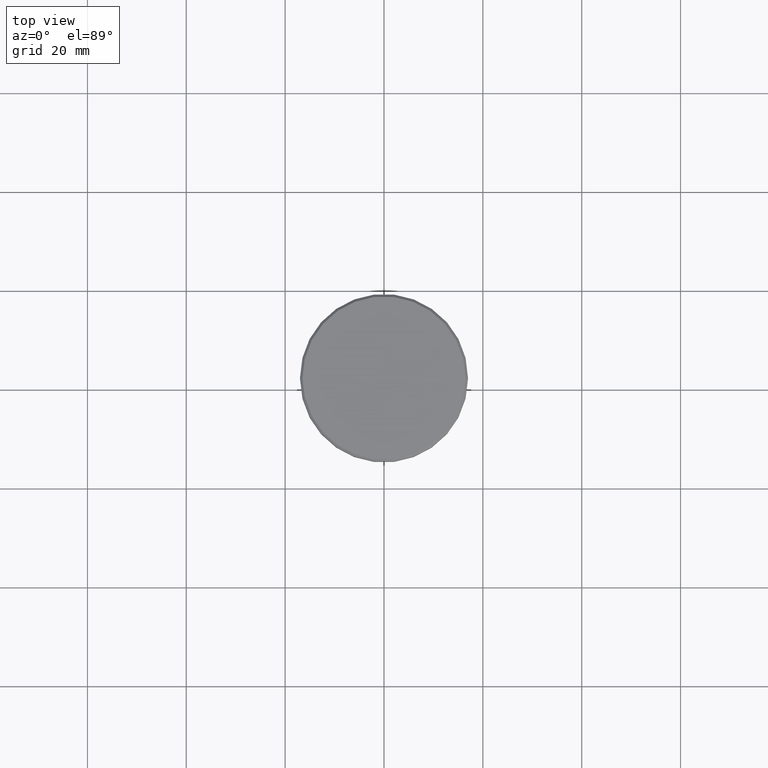
[diagram: clean part render]
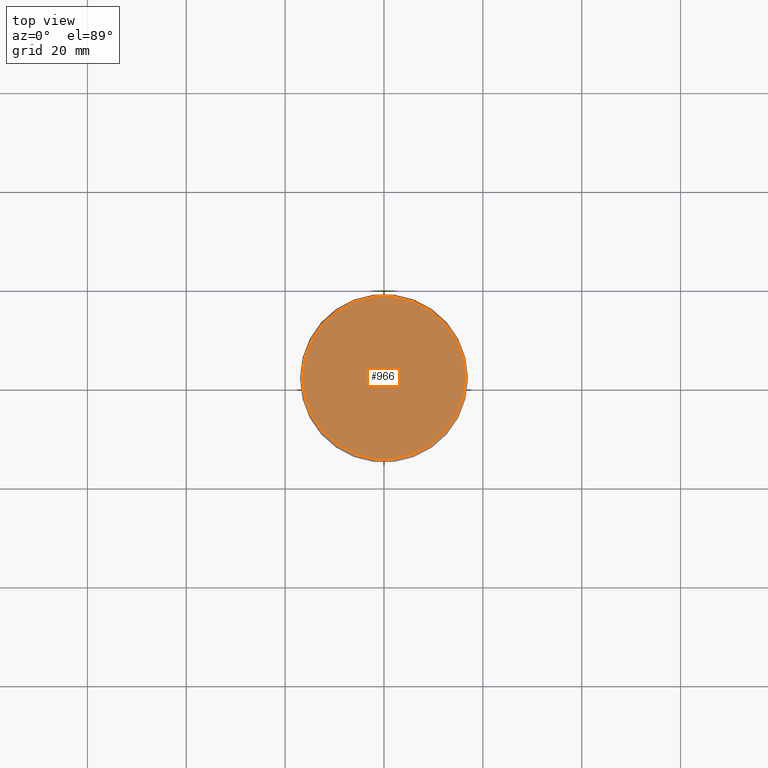
[diagram: same view with one face highlighted and labeled with its STEP entity id]
A machine part, top view. The second image highlights one B-rep face of the part: STEP entity #966.
In plain terms, the highlighted planar face has unit normal (0, -0, 1).
Its self-contained STEP definition (entity closure, byte-faithful):
#5 = CARTESIAN_POINT ( 'NONE',  ( 0.000000000000000000, 0.000000000000000000, 0.000000000000000000 ) ) ;
#57 = CARTESIAN_POINT ( 'NONE',  ( 16.49999999999998579, 2.051283388571816098E-15, 0.000000000000000000 ) ) ;
#63 = CARTESIAN_POINT ( 'NONE',  ( -16.49999999999998579, 0.000000000000000000, 0.000000000000000000 ) ) ;
#70 = DIRECTION ( 'NONE',  ( 1.000000000000000000, 0.000000000000000000, 0.000000000000000000 ) ) ;
#363 = DIRECTION ( 'NONE',  ( 0.000000000000000000, -0.000000000000000000, 1.000000000000000000 ) ) ;
#383 = EDGE_LOOP ( 'NONE', ( #398, #498 ) ) ;
#398 = ORIENTED_EDGE ( 'NONE', *, *, #841, .T. ) ;
#406 = VERTEX_POINT ( 'NONE', #63 ) ;
#475 = EDGE_CURVE ( 'NONE', #733, #406, #1104, .T. ) ;
#498 = ORIENTED_EDGE ( 'NONE', *, *, #475, .T. ) ;
#567 = AXIS2_PLACEMENT_3D ( 'NONE', #610, #897, #70 ) ;
#610 = CARTESIAN_POINT ( 'NONE',  ( 0.000000000000000000, 0.000000000000000000, 0.000000000000000000 ) ) ;
#637 = PLANE ( 'NONE',  #994 ) ;
#710 = AXIS2_PLACEMENT_3D ( 'NONE', #977, #718, #1021 ) ;
#718 = DIRECTION ( 'NONE',  ( -0.000000000000000000, -0.000000000000000000, 1.000000000000000000 ) ) ;
#731 = FACE_OUTER_BOUND ( 'NONE', #383, .T. ) ;
#733 = VERTEX_POINT ( 'NONE', #57 ) ;
#841 = EDGE_CURVE ( 'NONE', #406, #733, #1048, .T. ) ;
#897 = DIRECTION ( 'NONE',  ( -0.000000000000000000, -0.000000000000000000, 1.000000000000000000 ) ) ;
#966 = ADVANCED_FACE ( 'NONE', ( #731 ), #637, .T. ) ;
#977 = CARTESIAN_POINT ( 'NONE',  ( 0.000000000000000000, 0.000000000000000000, 0.000000000000000000 ) ) ;
#994 = AXIS2_PLACEMENT_3D ( 'NONE', #5, #363, #1019 ) ;
#1019 = DIRECTION ( 'NONE',  ( 1.000000000000000000, 0.000000000000000000, 0.000000000000000000 ) ) ;
#1021 = DIRECTION ( 'NONE',  ( 1.000000000000000000, 0.000000000000000000, 0.000000000000000000 ) ) ;
#1048 = CIRCLE ( 'NONE', #567, 16.49999999999998579 ) ;
#1104 = CIRCLE ( 'NONE', #710, 16.49999999999998579 ) ;